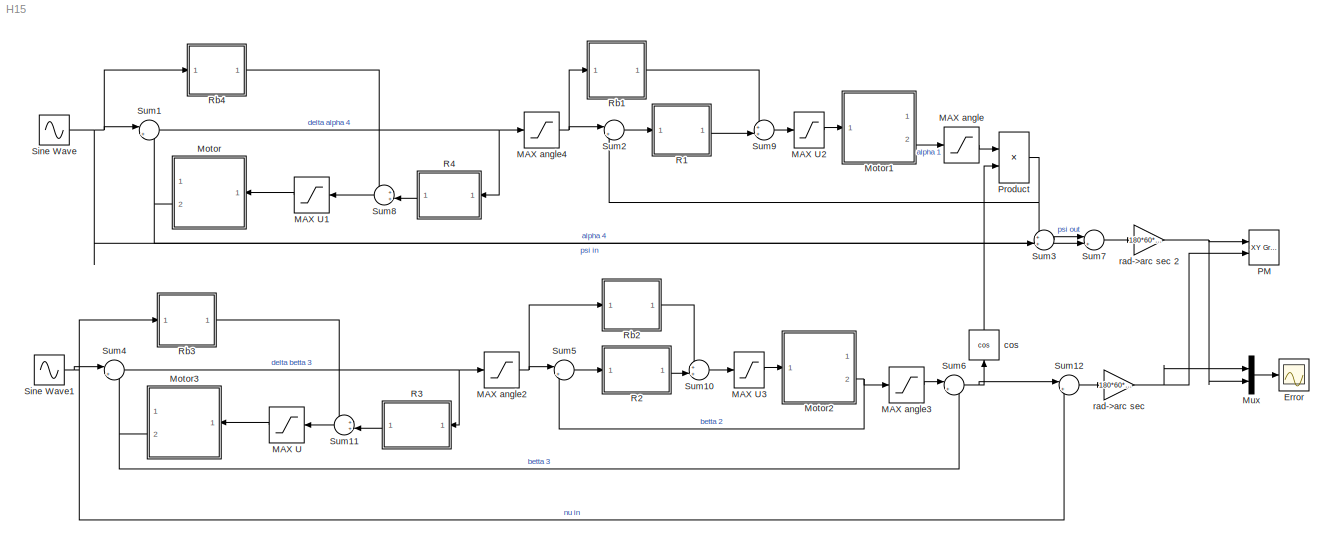
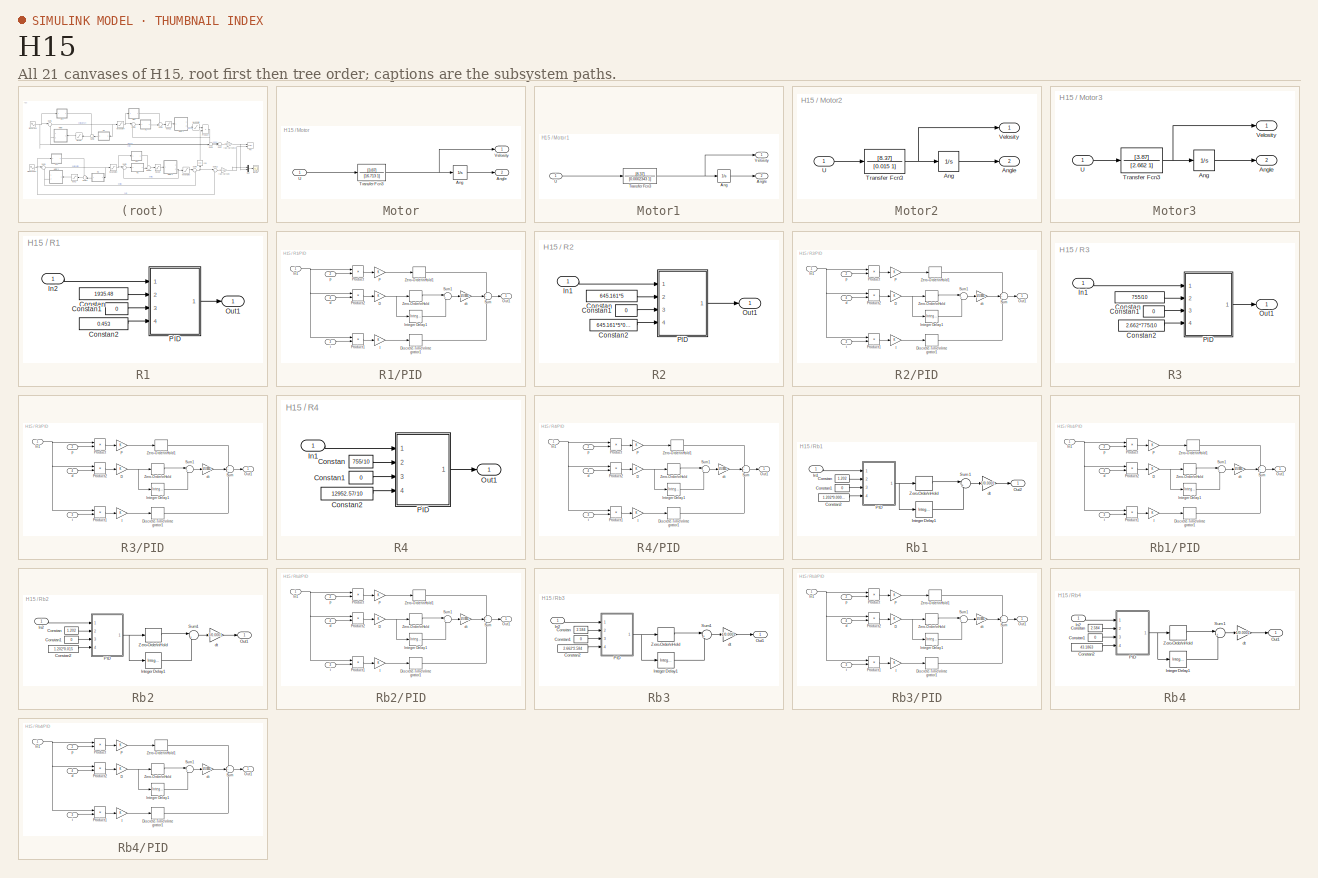
[diagram: thumbnail index - all 21 canvases of the model, root first then tree order]
MODEL H15
KIND model
BLOCK [Scope] Error
  DataFormat = StructureWithTime
  Floating = off
  MaxDataPoints = 500000
  NumInputPorts = 1
  Ports = [1]
  SampleTime = 0
  SaveName = ScopeData2
  YMax = 95
  YMin = -10
  ZoomMode = yonly
BLOCK [Saturate] MAX U
  LowerLimit = -42
  UpperLimit = 42
BLOCK [Saturate] MAX U1
  LowerLimit = -42
  UpperLimit = 42
BLOCK [Saturate] MAX U2
  LowerLimit = -12
  UpperLimit = 12
BLOCK [Saturate] MAX U3
  LowerLimit = -12
  UpperLimit = 12
BLOCK [Saturate] MAX angle
  LowerLimit = -4/180*3.14
  UpperLimit = 4/180*3.14
BLOCK [Saturate] MAX angle2
  LowerLimit = -4/180*3.14
  UpperLimit = 4/180*3.14
BLOCK [Saturate] MAX angle3
  LowerLimit = -4/180*3.14
  UpperLimit = 4/180*3.14
BLOCK [Saturate] MAX angle4
  LowerLimit = -4/180*3.14
  UpperLimit = 4/180*3.14
BLOCK [SubSystem] Motor
  FunctionWithSeparateData = off
  MaskHideContents = off
  MinAlgLoopOccurrences = off
  Opaque = off
  Ports = [1, 2]
  PropExecContextOutsideSubsystem = off
  RTWSystemCode = Auto
  RequestExecContextInheritance = off
  TreatAsAtomicUnit = on
BLOCK [Integrator] Motor/Ang
  Ports = [1, 1]
BLOCK [Outport] Motor/Angle
  IconDisplay = Port number
  OutDataType = fixdt(1, 16)
  OutScaling = 2^0
  Port = 2
BLOCK [TransferFcn] Motor/Transfer Fcn3
  Denominator = [16.713 1]
  Numerator = [3.87]
BLOCK [Inport] Motor/U
  IconDisplay = Port number
  OutDataType = fixdt(1, 16)
  OutScaling = 2^0
BLOCK [Outport] Motor/Velosity
  IconDisplay = Port number
  OutDataType = fixdt(1, 16)
  OutScaling = 2^0
BLOCK [SubSystem] Motor1
  FunctionWithSeparateData = off
  MaskHideContents = off
  MinAlgLoopOccurrences = off
  Opaque = off
  Ports = [1, 2]
  PropExecContextOutsideSubsystem = off
  RTWSystemCode = Auto
  RequestExecContextInheritance = off
  TreatAsAtomicUnit = on
BLOCK [Integrator] Motor1/Ang
  Ports = [1, 1]
BLOCK [Outport] Motor1/Angle
  IconDisplay = Port number
  OutDataType = fixdt(1, 16)
  OutScaling = 2^0
  Port = 2
BLOCK [TransferFcn] Motor1/Transfer Fcn3
  Denominator = [0.0002343 1]
  Numerator = [8.37]
BLOCK [Inport] Motor1/U
  IconDisplay = Port number
  OutDataType = fixdt(1, 16)
  OutScaling = 2^0
BLOCK [Outport] Motor1/Velosity
  IconDisplay = Port number
  OutDataType = fixdt(1, 16)
  OutScaling = 2^0
BLOCK [SubSystem] Motor2
  FunctionWithSeparateData = off
  MaskHideContents = off
  MinAlgLoopOccurrences = off
  Opaque = off
  Ports = [1, 2]
  PropExecContextOutsideSubsystem = off
  RTWSystemCode = Auto
  RequestExecContextInheritance = off
  TreatAsAtomicUnit = on
BLOCK [Integrator] Motor2/Ang
  Ports = [1, 1]
BLOCK [Outport] Motor2/Angle
  IconDisplay = Port number
  OutDataType = fixdt(1, 16)
  OutScaling = 2^0
  Port = 2
BLOCK [TransferFcn] Motor2/Transfer Fcn3
  Denominator = [0.015 1]
  Numerator = [8.37]
BLOCK [Inport] Motor2/U
  IconDisplay = Port number
  OutDataType = fixdt(1, 16)
  OutScaling = 2^0
BLOCK [Outport] Motor2/Velosity
  IconDisplay = Port number
  OutDataType = fixdt(1, 16)
  OutScaling = 2^0
BLOCK [SubSystem] Motor3
  FunctionWithSeparateData = off
  MaskHideContents = off
  MinAlgLoopOccurrences = off
  Opaque = off
  Ports = [1, 2]
  PropExecContextOutsideSubsystem = off
  RTWSystemCode = Auto
  RequestExecContextInheritance = off
  TreatAsAtomicUnit = on
BLOCK [Integrator] Motor3/Ang
  Ports = [1, 1]
BLOCK [Outport] Motor3/Angle
  IconDisplay = Port number
  OutDataType = fixdt(1, 16)
  OutScaling = 2^0
  Port = 2
BLOCK [TransferFcn] Motor3/Transfer Fcn3
  Denominator = [2.662 1]
  Numerator = [3.87]
BLOCK [Inport] Motor3/U
  IconDisplay = Port number
  OutDataType = fixdt(1, 16)
  OutScaling = 2^0
BLOCK [Outport] Motor3/Velosity
  IconDisplay = Port number
  OutDataType = fixdt(1, 16)
  OutScaling = 2^0
BLOCK [Mux] Mux
  DisplayOption = bar
  Inputs = 2
  Ports = [2, 1]
BLOCK [Reference] PM  REF=simulink/Sinks/XY Graph
  FunctionWithSeparateData = off
  Ports = [2]
  RTWMemSecDataConstants = Inherit from model
  RTWMemSecDataInternal = Inherit from model
  RTWMemSecDataParameters = Inherit from model
  RTWMemSecFuncExecute = Inherit from model
  RTWMemSecFuncInitTerm = Inherit from model
  ShowPortLabels = FromPortIcon
  SourceBlock = simulink/Sinks/XY Graph
  SourceType = XY scope.
  SystemSampleTime = -1
  st = -1
  xmax = 3*1280
  xmin = -3*1280
  ymax = 3*960
  ymin = -3*960
BLOCK [Product] Product
  InputSameDT = off
  OutDataType = fixdt(1, 16)
  OutDataTypeMode = Inherit via internal rule
  OutDataTypeStr = Inherit: Inherit via internal rule
  OutScaling = 2^0
  Ports = [2, 1]
  SaturateOnIntegerOverflow = off
BLOCK [SubSystem] R1
  FunctionWithSeparateData = off
  MaskHideContents = off
  MinAlgLoopOccurrences = off
  Opaque = off
  Ports = [1, 1]
  PropExecContextOutsideSubsystem = off
  RTWSystemCode = Auto
  RequestExecContextInheritance = off
BLOCK [Constant] R1/Constan
  OutDataType = fixdt(1, 16)
  OutScaling = 2^0
  Value = 1935.48
BLOCK [Constant] R1/Constan1
  OutDataType = fixdt(1, 16)
  OutScaling = 2^0
  Value = 0
BLOCK [Constant] R1/Constan2
  OutDataType = fixdt(1, 16)
  OutScaling = 2^0
  Value = 0.453
BLOCK [Inport] R1/In2
  IconDisplay = Port number
  OutDataType = fixdt(1, 16)
  OutScaling = 2^0
BLOCK [Outport] R1/Out1
  IconDisplay = Port number
  OutDataType = fixdt(1, 16)
  OutScaling = 2^0
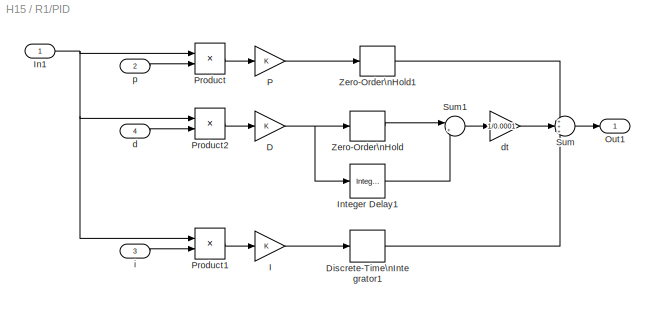
BLOCK [SubSystem] R1/PID
  FunctionWithSeparateData = off
  MaskHideContents = off
  MinAlgLoopOccurrences = off
  Opaque = off
  Ports = [4, 1]
  PropExecContextOutsideSubsystem = off
  RTWSystemCode = Auto
  RequestExecContextInheritance = off
BLOCK [Gain] R1/PID/D
  OutDataType = fixdt(1, 16)
  OutDataTypeMode = Inherit via internal rule
  OutDataTypeStr = Inherit: Inherit via internal rule
  OutScaling = 2^0
  ParamDataTypeStr = Inherit: Inherit via internal rule
  ParameterDataType = fixdt(1, 16)
  ParameterDataTypeMode = Inherit via internal rule
  ParameterScaling = 2^0
  SaturateOnIntegerOverflow = off
BLOCK [DiscreteIntegrator] R1/PID/Discrete-Time\nIntegrator1
  ExternalReset = none
  ICPrevOutput = DiscIntNeverNeededParam
  ICPrevScaledInput = DiscIntNeverNeededParam
  InitialConditionSource = internal
  IntegratorMethod = Integration: Forward Euler
  OutDataType = fixdt(1, 16)
  OutScaling = 2^0
  Ports = [1, 1]
  SampleTime = 0.0001
BLOCK [Gain] R1/PID/I
  OutDataType = fixdt(1, 16)
  OutDataTypeMode = Inherit via internal rule
  OutDataTypeStr = Inherit: Inherit via internal rule
  OutScaling = 2^0
  ParamDataTypeStr = Inherit: Inherit via internal rule
  ParameterDataType = fixdt(1, 16)
  ParameterDataTypeMode = Inherit via internal rule
  ParameterScaling = 2^0
  SaturateOnIntegerOverflow = off
BLOCK [Inport] R1/PID/In1
  IconDisplay = Port number
  OutDataType = fixdt(1, 16)
  OutScaling = 2^0
BLOCK [Reference] R1/PID/Integer Delay1  REF=simulink/Discrete/Integer Delay
  NumDelays = 1
  Ports = [1, 1]
  SourceBlock = simulink/Discrete/Integer Delay
  SourceType = Integer Delay
  samptime = 0.0001
  vinit = 0.0
BLOCK [Outport] R1/PID/Out1
  IconDisplay = Port number
  OutDataType = fixdt(1, 16)
  OutScaling = 2^0
BLOCK [Gain] R1/PID/P
  OutDataType = fixdt(1, 16)
  OutDataTypeMode = Inherit via internal rule
  OutDataTypeStr = Inherit: Inherit via internal rule
  OutScaling = 2^0
  ParamDataTypeStr = Inherit: Inherit via internal rule
  ParameterDataType = fixdt(1, 16)
  ParameterDataTypeMode = Inherit via internal rule
  ParameterScaling = 2^0
  SaturateOnIntegerOverflow = off
BLOCK [Product] R1/PID/Product
  InputSameDT = off
  OutDataType = fixdt(1, 16)
  OutDataTypeMode = Inherit via internal rule
  OutDataTypeStr = Inherit: Inherit via internal rule
  OutScaling = 2^0
  Ports = [2, 1]
  SaturateOnIntegerOverflow = off
BLOCK [Product] R1/PID/Product1
  InputSameDT = off
  OutDataType = fixdt(1, 16)
  OutDataTypeMode = Inherit via internal rule
  OutDataTypeStr = Inherit: Inherit via internal rule
  OutScaling = 2^0
  Ports = [2, 1]
  SaturateOnIntegerOverflow = off
BLOCK [Product] R1/PID/Product2
  InputSameDT = off
  OutDataType = fixdt(1, 16)
  OutDataTypeMode = Inherit via internal rule
  OutDataTypeStr = Inherit: Inherit via internal rule
  OutScaling = 2^0
  Ports = [2, 1]
  SaturateOnIntegerOverflow = off
BLOCK [Sum] R1/PID/Sum
  IconShape = round
  InputSameDT = off
  Inputs = +++
  OutDataType = fixdt(1, 16)
  OutDataTypeMode = Inherit via internal rule
  OutDataTypeStr = Inherit: Inherit via internal rule
  OutScaling = 2^0
  Ports = [3, 1]
  SaturateOnIntegerOverflow = off
BLOCK [Sum] R1/PID/Sum1
  IconShape = round
  InputSameDT = off
  Inputs = |+-
  OutDataType = fixdt(1, 16)
  OutDataTypeMode = Inherit via internal rule
  OutDataTypeStr = Inherit: Inherit via internal rule
  OutScaling = 2^0
  Ports = [2, 1]
  SaturateOnIntegerOverflow = off
BLOCK [ZeroOrderHold] R1/PID/Zero-Order\nHold
  SampleTime = 0.0001
BLOCK [ZeroOrderHold] R1/PID/Zero-Order\nHold1
  SampleTime = 0.0001
BLOCK [Inport] R1/PID/d
  IconDisplay = Port number
  OutDataType = fixdt(1, 16)
  OutScaling = 2^0
  Port = 4
BLOCK [Gain] R1/PID/dt
  Gain = 1/0.0001
  OutDataType = fixdt(1, 16)
  OutDataTypeMode = Inherit via internal rule
  OutDataTypeStr = Inherit: Inherit via internal rule
  OutScaling = 2^0
  ParamDataTypeStr = Inherit: Inherit via internal rule
  ParameterDataType = fixdt(1, 16)
  ParameterDataTypeMode = Inherit via internal rule
  ParameterScaling = 2^0
  SaturateOnIntegerOverflow = off
BLOCK [Inport] R1/PID/i
  IconDisplay = Port number
  OutDataType = fixdt(1, 16)
  OutScaling = 2^0
  Port = 3
BLOCK [Inport] R1/PID/p
  IconDisplay = Port number
  OutDataType = fixdt(1, 16)
  OutScaling = 2^0
  Port = 2
BLOCK [SubSystem] R2
  FunctionWithSeparateData = off
  MaskHideContents = off
  MinAlgLoopOccurrences = off
  Opaque = off
  Ports = [1, 1]
  PropExecContextOutsideSubsystem = off
  RTWSystemCode = Auto
  RequestExecContextInheritance = off
BLOCK [Constant] R2/Constan
  OutDataType = fixdt(1, 16)
  OutScaling = 2^0
  Value = 645.161*5
BLOCK [Constant] R2/Constan1
  OutDataType = fixdt(1, 16)
  OutScaling = 2^0
  Value = 0
BLOCK [Constant] R2/Constan2
  OutDataType = fixdt(1, 16)
  OutScaling = 2^0
  Value = 645.161*5*0.015/10
BLOCK [Inport] R2/In1
  IconDisplay = Port number
  OutDataType = fixdt(1, 16)
  OutScaling = 2^0
BLOCK [Outport] R2/Out1
  IconDisplay = Port number
  OutDataType = fixdt(1, 16)
  OutScaling = 2^0
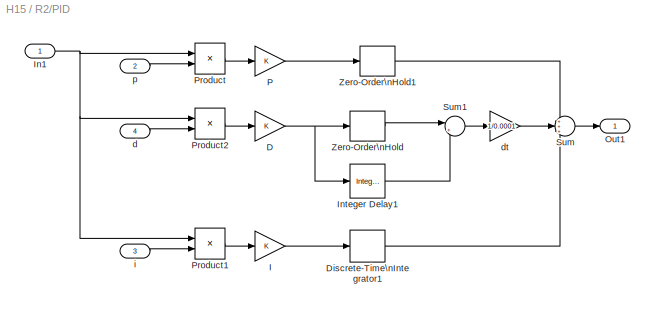
BLOCK [SubSystem] R2/PID
  FunctionWithSeparateData = off
  MaskHideContents = off
  MinAlgLoopOccurrences = off
  Opaque = off
  Ports = [4, 1]
  PropExecContextOutsideSubsystem = off
  RTWSystemCode = Auto
  RequestExecContextInheritance = off
BLOCK [Gain] R2/PID/D
  OutDataType = fixdt(1, 16)
  OutDataTypeMode = Inherit via internal rule
  OutDataTypeStr = Inherit: Inherit via internal rule
  OutScaling = 2^0
  ParamDataTypeStr = Inherit: Inherit via internal rule
  ParameterDataType = fixdt(1, 16)
  ParameterDataTypeMode = Inherit via internal rule
  ParameterScaling = 2^0
  SaturateOnIntegerOverflow = off
BLOCK [DiscreteIntegrator] R2/PID/Discrete-Time\nIntegrator1
  ExternalReset = none
  ICPrevOutput = DiscIntNeverNeededParam
  ICPrevScaledInput = DiscIntNeverNeededParam
  InitialConditionSource = internal
  IntegratorMethod = Integration: Forward Euler
  OutDataType = fixdt(1, 16)
  OutScaling = 2^0
  Ports = [1, 1]
  SampleTime = 0.0001
BLOCK [Gain] R2/PID/I
  OutDataType = fixdt(1, 16)
  OutDataTypeMode = Inherit via internal rule
  OutDataTypeStr = Inherit: Inherit via internal rule
  OutScaling = 2^0
  ParamDataTypeStr = Inherit: Inherit via internal rule
  ParameterDataType = fixdt(1, 16)
  ParameterDataTypeMode = Inherit via internal rule
  ParameterScaling = 2^0
  SaturateOnIntegerOverflow = off
BLOCK [Inport] R2/PID/In1
  IconDisplay = Port number
  OutDataType = fixdt(1, 16)
  OutScaling = 2^0
BLOCK [Reference] R2/PID/Integer Delay1  REF=simulink/Discrete/Integer Delay
  NumDelays = 1
  Ports = [1, 1]
  SourceBlock = simulink/Discrete/Integer Delay
  SourceType = Integer Delay
  samptime = 0.0001
  vinit = 0
BLOCK [Outport] R2/PID/Out1
  IconDisplay = Port number
  OutDataType = fixdt(1, 16)
  OutScaling = 2^0
BLOCK [Gain] R2/PID/P
  OutDataType = fixdt(1, 16)
  OutDataTypeMode = Inherit via internal rule
  OutDataTypeStr = Inherit: Inherit via internal rule
  OutScaling = 2^0
  ParamDataTypeStr = Inherit: Inherit via internal rule
  ParameterDataType = fixdt(1, 16)
  ParameterDataTypeMode = Inherit via internal rule
  ParameterScaling = 2^0
  SaturateOnIntegerOverflow = off
BLOCK [Product] R2/PID/Product
  InputSameDT = off
  OutDataType = fixdt(1, 16)
  OutDataTypeMode = Inherit via internal rule
  OutDataTypeStr = Inherit: Inherit via internal rule
  OutScaling = 2^0
  Ports = [2, 1]
  SaturateOnIntegerOverflow = off
BLOCK [Product] R2/PID/Product1
  InputSameDT = off
  OutDataType = fixdt(1, 16)
  OutDataTypeMode = Inherit via internal rule
  OutDataTypeStr = Inherit: Inherit via internal rule
  OutScaling = 2^0
  Ports = [2, 1]
  SaturateOnIntegerOverflow = off
BLOCK [Product] R2/PID/Product2
  InputSameDT = off
  OutDataType = fixdt(1, 16)
  OutDataTypeMode = Inherit via internal rule
  OutDataTypeStr = Inherit: Inherit via internal rule
  OutScaling = 2^0
  Ports = [2, 1]
  SaturateOnIntegerOverflow = off
BLOCK [Sum] R2/PID/Sum
  IconShape = round
  InputSameDT = off
  Inputs = +++
  OutDataType = fixdt(1, 16)
  OutDataTypeMode = Inherit via internal rule
  OutDataTypeStr = Inherit: Inherit via internal rule
  OutScaling = 2^0
  Ports = [3, 1]
  SaturateOnIntegerOverflow = off
BLOCK [Sum] R2/PID/Sum1
  IconShape = round
  InputSameDT = off
  Inputs = |+-
  OutDataType = fixdt(1, 16)
  OutDataTypeMode = Inherit via internal rule
  OutDataTypeStr = Inherit: Inherit via internal rule
  OutScaling = 2^0
  Ports = [2, 1]
  SaturateOnIntegerOverflow = off
BLOCK [ZeroOrderHold] R2/PID/Zero-Order\nHold
  SampleTime = 0.0001
BLOCK [ZeroOrderHold] R2/PID/Zero-Order\nHold1
  SampleTime = 0.0001
BLOCK [Inport] R2/PID/d
  IconDisplay = Port number
  OutDataType = fixdt(1, 16)
  OutScaling = 2^0
  Port = 4
BLOCK [Gain] R2/PID/dt
  Gain = 1/0.0001
  OutDataType = fixdt(1, 16)
  OutDataTypeMode = Inherit via internal rule
  OutDataTypeStr = Inherit: Inherit via internal rule
  OutScaling = 2^0
  ParamDataTypeStr = Inherit: Inherit via internal rule
  ParameterDataType = fixdt(1, 16)
  ParameterDataTypeMode = Inherit via internal rule
  ParameterScaling = 2^0
  SaturateOnIntegerOverflow = off
BLOCK [Inport] R2/PID/i
  IconDisplay = Port number
  OutDataType = fixdt(1, 16)
  OutScaling = 2^0
  Port = 3
BLOCK [Inport] R2/PID/p
  IconDisplay = Port number
  OutDataType = fixdt(1, 16)
  OutScaling = 2^0
  Port = 2
BLOCK [SubSystem] R3
  FunctionWithSeparateData = off
  MaskHideContents = off
  MinAlgLoopOccurrences = off
  Opaque = off
  Ports = [1, 1]
  PropExecContextOutsideSubsystem = off
  RTWSystemCode = Auto
  RequestExecContextInheritance = off
BLOCK [Constant] R3/Constan
  OutDataType = fixdt(1, 16)
  OutScaling = 2^0
  Value = 755/10
BLOCK [Constant] R3/Constan1
  OutDataType = fixdt(1, 16)
  OutScaling = 2^0
  Value = 0
BLOCK [Constant] R3/Constan2
  OutDataType = fixdt(1, 16)
  OutScaling = 2^0
  Value = 2.662*775/10
BLOCK [Inport] R3/In1
  IconDisplay = Port number
  OutDataType = fixdt(1, 16)
  OutScaling = 2^0
BLOCK [Outport] R3/Out1
  IconDisplay = Port number
  OutDataType = fixdt(1, 16)
  OutScaling = 2^0
BLOCK [SubSystem] R3/PID
  FunctionWithSeparateData = off
  MaskHideContents = off
  MinAlgLoopOccurrences = off
  Opaque = off
  Ports = [4, 1]
  PropExecContextOutsideSubsystem = off
  RTWSystemCode = Auto
  RequestExecContextInheritance = off
BLOCK [Gain] R3/PID/D
  OutDataType = fixdt(1, 16)
  OutDataTypeMode = Inherit via internal rule
  OutDataTypeStr = Inherit: Inherit via internal rule
  OutScaling = 2^0
  ParamDataTypeStr = Inherit: Inherit via internal rule
  ParameterDataType = fixdt(1, 16)
  ParameterDataTypeMode = Inherit via internal rule
  ParameterScaling = 2^0
  SaturateOnIntegerOverflow = off
BLOCK [DiscreteIntegrator] R3/PID/Discrete-Time\nIntegrator1
  ExternalReset = none
  ICPrevOutput = DiscIntNeverNeededParam
  ICPrevScaledInput = DiscIntNeverNeededParam
  InitialConditionSource = internal
  IntegratorMethod = Integration: Forward Euler
  OutDataType = fixdt(1, 16)
  OutScaling = 2^0
  Ports = [1, 1]
  SampleTime = 0.0001
BLOCK [Gain] R3/PID/I
  OutDataType = fixdt(1, 16)
  OutDataTypeMode = Inherit via internal rule
  OutDataTypeStr = Inherit: Inherit via internal rule
  OutScaling = 2^0
  ParamDataTypeStr = Inherit: Inherit via internal rule
  ParameterDataType = fixdt(1, 16)
  ParameterDataTypeMode = Inherit via internal rule
  ParameterScaling = 2^0
  SaturateOnIntegerOverflow = off
BLOCK [Inport] R3/PID/In1
  IconDisplay = Port number
  OutDataType = fixdt(1, 16)
  OutScaling = 2^0
BLOCK [Reference] R3/PID/Integer Delay1  REF=simulink/Discrete/Integer Delay
  NumDelays = 1
  Ports = [1, 1]
  SourceBlock = simulink/Discrete/Integer Delay
  SourceType = Integer Delay
  samptime = 0.0001
  vinit = 0
BLOCK [Outport] R3/PID/Out1
  IconDisplay = Port number
  OutDataType = fixdt(1, 16)
  OutScaling = 2^0
BLOCK [Gain] R3/PID/P
  OutDataType = fixdt(1, 16)
  OutDataTypeMode = Inherit via internal rule
  OutDataTypeStr = Inherit: Inherit via internal rule
  OutScaling = 2^0
  ParamDataTypeStr = Inherit: Inherit via internal rule
  ParameterDataType = fixdt(1, 16)
  ParameterDataTypeMode = Inherit via internal rule
  ParameterScaling = 2^0
  SaturateOnIntegerOverflow = off
BLOCK [Product] R3/PID/Product
  InputSameDT = off
  OutDataType = fixdt(1, 16)
  OutDataTypeMode = Inherit via internal rule
  OutDataTypeStr = Inherit: Inherit via internal rule
  OutScaling = 2^0
  Ports = [2, 1]
  SaturateOnIntegerOverflow = off
BLOCK [Product] R3/PID/Product1
  InputSameDT = off
  OutDataType = fixdt(1, 16)
  OutDataTypeMode = Inherit via internal rule
  OutDataTypeStr = Inherit: Inherit via internal rule
  OutScaling = 2^0
  Ports = [2, 1]
  SaturateOnIntegerOverflow = off
BLOCK [Product] R3/PID/Product2
  InputSameDT = off
  OutDataType = fixdt(1, 16)
  OutDataTypeMode = Inherit via internal rule
  OutDataTypeStr = Inherit: Inherit via internal rule
  OutScaling = 2^0
  Ports = [2, 1]
  SaturateOnIntegerOverflow = off
BLOCK [Sum] R3/PID/Sum
  IconShape = round
  InputSameDT = off
  Inputs = +++
  OutDataType = fixdt(1, 16)
  OutDataTypeMode = Inherit via internal rule
  OutDataTypeStr = Inherit: Inherit via internal rule
  OutScaling = 2^0
  Ports = [3, 1]
  SaturateOnIntegerOverflow = off
BLOCK [Sum] R3/PID/Sum1
  IconShape = round
  InputSameDT = off
  Inputs = |+-
  OutDataType = fixdt(1, 16)
  OutDataTypeMode = Inherit via internal rule
  OutDataTypeStr = Inherit: Inherit via internal rule
  OutScaling = 2^0
  Ports = [2, 1]
  SaturateOnIntegerOverflow = off
BLOCK [ZeroOrderHold] R3/PID/Zero-Order\nHold
  SampleTime = 0.0001
BLOCK [ZeroOrderHold] R3/PID/Zero-Order\nHold1
  SampleTime = 0.0001
BLOCK [Inport] R3/PID/d
  IconDisplay = Port number
  OutDataType = fixdt(1, 16)
  OutScaling = 2^0
  Port = 4
BLOCK [Gain] R3/PID/dt
  Gain = 1/0.0001
  OutDataType = fixdt(1, 16)
  OutDataTypeMode = Inherit via internal rule
  OutDataTypeStr = Inherit: Inherit via internal rule
  OutScaling = 2^0
  ParamDataTypeStr = Inherit: Inherit via internal rule
  ParameterDataType = fixdt(1, 16)
  ParameterDataTypeMode = Inherit via internal rule
  ParameterScaling = 2^0
  SaturateOnIntegerOverflow = off
BLOCK [Inport] R3/PID/i
  IconDisplay = Port number
  OutDataType = fixdt(1, 16)
  OutScaling = 2^0
  Port = 3
BLOCK [Inport] R3/PID/p
  IconDisplay = Port number
  OutDataType = fixdt(1, 16)
  OutScaling = 2^0
  Port = 2
BLOCK [SubSystem] R4
  FunctionWithSeparateData = off
  MaskHideContents = off
  MinAlgLoopOccurrences = off
  Opaque = off
  Ports = [1, 1]
  PropExecContextOutsideSubsystem = off
  RTWSystemCode = Auto
  RequestExecContextInheritance = off
BLOCK [Constant] R4/Constan
  OutDataType = fixdt(1, 16)
  OutScaling = 2^0
  Value = 755/10
BLOCK [Constant] R4/Constan1
  OutDataType = fixdt(1, 16)
  OutScaling = 2^0
  Value = 0
BLOCK [Constant] R4/Constan2
  OutDataType = fixdt(1, 16)
  OutScaling = 2^0
  Value = 12952.57/10
BLOCK [Inport] R4/In1
  IconDisplay = Port number
  OutDataType = fixdt(1, 16)
  OutScaling = 2^0
BLOCK [Outport] R4/Out1
  IconDisplay = Port number
  OutDataType = fixdt(1, 16)
  OutScaling = 2^0
BLOCK [SubSystem] R4/PID
  FunctionWithSeparateData = off
  MaskHideContents = off
  MinAlgLoopOccurrences = off
  Opaque = off
  Ports = [4, 1]
  PropExecContextOutsideSubsystem = off
  RTWSystemCode = Auto
  RequestExecContextInheritance = off
BLOCK [Gain] R4/PID/D
  OutDataType = fixdt(1, 16)
  OutDataTypeMode = Inherit via internal rule
  OutDataTypeStr = Inherit: Inherit via internal rule
  OutScaling = 2^0
  ParamDataTypeStr = Inherit: Inherit via internal rule
  ParameterDataType = fixdt(1, 16)
  ParameterDataTypeMode = Inherit via internal rule
  ParameterScaling = 2^0
  SaturateOnIntegerOverflow = off
BLOCK [DiscreteIntegrator] R4/PID/Discrete-Time\nIntegrator1
  ExternalReset = none
  ICPrevOutput = DiscIntNeverNeededParam
  ICPrevScaledInput = DiscIntNeverNeededParam
  InitialConditionSource = internal
  IntegratorMethod = Integration: Forward Euler
  OutDataType = fixdt(1, 16)
  OutScaling = 2^0
  Ports = [1, 1]
  SampleTime = 0.0001
BLOCK [Gain] R4/PID/I
  OutDataType = fixdt(1, 16)
  OutDataTypeMode = Inherit via internal rule
  OutDataTypeStr = Inherit: Inherit via internal rule
  OutScaling = 2^0
  ParamDataTypeStr = Inherit: Inherit via internal rule
  ParameterDataType = fixdt(1, 16)
  ParameterDataTypeMode = Inherit via internal rule
  ParameterScaling = 2^0
  SaturateOnIntegerOverflow = off
BLOCK [Inport] R4/PID/In1
  IconDisplay = Port number
  OutDataType = fixdt(1, 16)
  OutScaling = 2^0
BLOCK [Reference] R4/PID/Integer Delay1  REF=simulink/Discrete/Integer Delay
  NumDelays = 1
  Ports = [1, 1]
  SourceBlock = simulink/Discrete/Integer Delay
  SourceType = Integer Delay
  samptime = 0.0001
  vinit = 0
BLOCK [Outport] R4/PID/Out1
  IconDisplay = Port number
  OutDataType = fixdt(1, 16)
  OutScaling = 2^0
BLOCK [Gain] R4/PID/P
  OutDataType = fixdt(1, 16)
  OutDataTypeMode = Inherit via internal rule
  OutDataTypeStr = Inherit: Inherit via internal rule
  OutScaling = 2^0
  ParamDataTypeStr = Inherit: Inherit via internal rule
  ParameterDataType = fixdt(1, 16)
  ParameterDataTypeMode = Inherit via internal rule
  ParameterScaling = 2^0
  SaturateOnIntegerOverflow = off
BLOCK [Product] R4/PID/Product
  InputSameDT = off
  OutDataType = fixdt(1, 16)
  OutDataTypeMode = Inherit via internal rule
  OutDataTypeStr = Inherit: Inherit via internal rule
  OutScaling = 2^0
  Ports = [2, 1]
  SaturateOnIntegerOverflow = off
BLOCK [Product] R4/PID/Product1
  InputSameDT = off
  OutDataType = fixdt(1, 16)
  OutDataTypeMode = Inherit via internal rule
  OutDataTypeStr = Inherit: Inherit via internal rule
  OutScaling = 2^0
  Ports = [2, 1]
  SaturateOnIntegerOverflow = off
BLOCK [Product] R4/PID/Product2
  InputSameDT = off
  OutDataType = fixdt(1, 16)
  OutDataTypeMode = Inherit via internal rule
  OutDataTypeStr = Inherit: Inherit via internal rule
  OutScaling = 2^0
  Ports = [2, 1]
  SaturateOnIntegerOverflow = off
BLOCK [Sum] R4/PID/Sum
  IconShape = round
  InputSameDT = off
  Inputs = +++
  OutDataType = fixdt(1, 16)
  OutDataTypeMode = Inherit via internal rule
  OutDataTypeStr = Inherit: Inherit via internal rule
  OutScaling = 2^0
  Ports = [3, 1]
  SaturateOnIntegerOverflow = off
BLOCK [Sum] R4/PID/Sum1
  IconShape = round
  InputSameDT = off
  Inputs = |+-
  OutDataType = fixdt(1, 16)
  OutDataTypeMode = Inherit via internal rule
  OutDataTypeStr = Inherit: Inherit via internal rule
  OutScaling = 2^0
  Ports = [2, 1]
  SaturateOnIntegerOverflow = off
BLOCK [ZeroOrderHold] R4/PID/Zero-Order\nHold
  SampleTime = 0.0001
BLOCK [ZeroOrderHold] R4/PID/Zero-Order\nHold1
  SampleTime = 0.0001
BLOCK [Inport] R4/PID/d
  IconDisplay = Port number
  OutDataType = fixdt(1, 16)
  OutScaling = 2^0
  Port = 4
BLOCK [Gain] R4/PID/dt
  Gain = 1/0.0001
  OutDataType = fixdt(1, 16)
  OutDataTypeMode = Inherit via internal rule
  OutDataTypeStr = Inherit: Inherit via internal rule
  OutScaling = 2^0
  ParamDataTypeStr = Inherit: Inherit via internal rule
  ParameterDataType = fixdt(1, 16)
  ParameterDataTypeMode = Inherit via internal rule
  ParameterScaling = 2^0
  SaturateOnIntegerOverflow = off
BLOCK [Inport] R4/PID/i
  IconDisplay = Port number
  OutDataType = fixdt(1, 16)
  OutScaling = 2^0
  Port = 3
BLOCK [Inport] R4/PID/p
  IconDisplay = Port number
  OutDataType = fixdt(1, 16)
  OutScaling = 2^0
  Port = 2
BLOCK [SubSystem] Rb1
  FunctionWithSeparateData = off
  MaskHideContents = off
  MinAlgLoopOccurrences = off
  Opaque = off
  Ports = [1, 1]
  PropExecContextOutsideSubsystem = off
  RTWSystemCode = Auto
  RequestExecContextInheritance = off
BLOCK [Constant] Rb1/Constan
  OutDataType = fixdt(1, 16)
  OutScaling = 2^0
  Value = 1.202
BLOCK [Constant] Rb1/Constan1
  OutDataType = fixdt(1, 16)
  OutScaling = 2^0
  Value = 0
BLOCK [Constant] Rb1/Constan2
  OutDataType = fixdt(1, 16)
  OutScaling = 2^0
  Value = 1.202*0.0002343
BLOCK [Inport] Rb1/In1
  IconDisplay = Port number
  OutDataType = fixdt(1, 16)
  OutScaling = 2^0
BLOCK [Reference] Rb1/Integer Delay1  REF=simulink/Discrete/Integer Delay
  NumDelays = 1
  Ports = [1, 1]
  SourceBlock = simulink/Discrete/Integer Delay
  SourceType = Integer Delay
  samptime = 0.0001
  vinit = 0
BLOCK [Outport] Rb1/Out2
  IconDisplay = Port number
  OutDataType = fixdt(1, 16)
  OutScaling = 2^0
BLOCK [SubSystem] Rb1/PID
  FunctionWithSeparateData = off
  MaskHideContents = off
  MinAlgLoopOccurrences = off
  Opaque = off
  Ports = [4, 1]
  PropExecContextOutsideSubsystem = off
  RTWSystemCode = Auto
  RequestExecContextInheritance = off
BLOCK [Gain] Rb1/PID/D
  OutDataType = fixdt(1, 16)
  OutDataTypeMode = Inherit via internal rule
  OutDataTypeStr = Inherit: Inherit via internal rule
  OutScaling = 2^0
  ParamDataTypeStr = Inherit: Inherit via internal rule
  ParameterDataType = fixdt(1, 16)
  ParameterDataTypeMode = Inherit via internal rule
  ParameterScaling = 2^0
  SaturateOnIntegerOverflow = off
BLOCK [DiscreteIntegrator] Rb1/PID/Discrete-Time\nIntegrator1
  ExternalReset = none
  ICPrevOutput = DiscIntNeverNeededParam
  ICPrevScaledInput = DiscIntNeverNeededParam
  InitialConditionSource = internal
  IntegratorMethod = Integration: Forward Euler
  OutDataType = fixdt(1, 16)
  OutScaling = 2^0
  Ports = [1, 1]
  SampleTime = 0.0001
BLOCK [Gain] Rb1/PID/I
  OutDataType = fixdt(1, 16)
  OutDataTypeMode = Inherit via internal rule
  OutDataTypeStr = Inherit: Inherit via internal rule
  OutScaling = 2^0
  ParamDataTypeStr = Inherit: Inherit via internal rule
  ParameterDataType = fixdt(1, 16)
  ParameterDataTypeMode = Inherit via internal rule
  ParameterScaling = 2^0
  SaturateOnIntegerOverflow = off
BLOCK [Inport] Rb1/PID/In1
  IconDisplay = Port number
  OutDataType = fixdt(1, 16)
  OutScaling = 2^0
BLOCK [Reference] Rb1/PID/Integer Delay1  REF=simulink/Discrete/Integer Delay
  NumDelays = 1
  Ports = [1, 1]
  SourceBlock = simulink/Discrete/Integer Delay
  SourceType = Integer Delay
  samptime = 0.0001
  vinit = 0
BLOCK [Outport] Rb1/PID/Out1
  IconDisplay = Port number
  OutDataType = fixdt(1, 16)
  OutScaling = 2^0
BLOCK [Gain] Rb1/PID/P
  OutDataType = fixdt(1, 16)
  OutDataTypeMode = Inherit via internal rule
  OutDataTypeStr = Inherit: Inherit via internal rule
  OutScaling = 2^0
  ParamDataTypeStr = Inherit: Inherit via internal rule
  ParameterDataType = fixdt(1, 16)
  ParameterDataTypeMode = Inherit via internal rule
  ParameterScaling = 2^0
  SaturateOnIntegerOverflow = off
BLOCK [Product] Rb1/PID/Product
  InputSameDT = off
  OutDataType = fixdt(1, 16)
  OutDataTypeMode = Inherit via internal rule
  OutDataTypeStr = Inherit: Inherit via internal rule
  OutScaling = 2^0
  Ports = [2, 1]
  SaturateOnIntegerOverflow = off
BLOCK [Product] Rb1/PID/Product1
  InputSameDT = off
  OutDataType = fixdt(1, 16)
  OutDataTypeMode = Inherit via internal rule
  OutDataTypeStr = Inherit: Inherit via internal rule
  OutScaling = 2^0
  Ports = [2, 1]
  SaturateOnIntegerOverflow = off
BLOCK [Product] Rb1/PID/Product2
  InputSameDT = off
  OutDataType = fixdt(1, 16)
  OutDataTypeMode = Inherit via internal rule
  OutDataTypeStr = Inherit: Inherit via internal rule
  OutScaling = 2^0
  Ports = [2, 1]
  SaturateOnIntegerOverflow = off
BLOCK [Sum] Rb1/PID/Sum
  IconShape = round
  InputSameDT = off
  Inputs = +++
  OutDataType = fixdt(1, 16)
  OutDataTypeMode = Inherit via internal rule
  OutDataTypeStr = Inherit: Inherit via internal rule
  OutScaling = 2^0
  Ports = [3, 1]
  SaturateOnIntegerOverflow = off
BLOCK [Sum] Rb1/PID/Sum1
  IconShape = round
  InputSameDT = off
  Inputs = |+-
  OutDataType = fixdt(1, 16)
  OutDataTypeMode = Inherit via internal rule
  OutDataTypeStr = Inherit: Inherit via internal rule
  OutScaling = 2^0
  Ports = [2, 1]
  SaturateOnIntegerOverflow = off
BLOCK [ZeroOrderHold] Rb1/PID/Zero-Order\nHold
  SampleTime = 0.0001
BLOCK [ZeroOrderHold] Rb1/PID/Zero-Order\nHold1
  SampleTime = 0.0001
BLOCK [Inport] Rb1/PID/d
  IconDisplay = Port number
  OutDataType = fixdt(1, 16)
  OutScaling = 2^0
  Port = 4
BLOCK [Gain] Rb1/PID/dt
  Gain = 1/0.0001
  OutDataType = fixdt(1, 16)
  OutDataTypeMode = Inherit via internal rule
  OutDataTypeStr = Inherit: Inherit via internal rule
  OutScaling = 2^0
  ParamDataTypeStr = Inherit: Inherit via internal rule
  ParameterDataType = fixdt(1, 16)
  ParameterDataTypeMode = Inherit via internal rule
  ParameterScaling = 2^0
  SaturateOnIntegerOverflow = off
BLOCK [Inport] Rb1/PID/i
  IconDisplay = Port number
  OutDataType = fixdt(1, 16)
  OutScaling = 2^0
  Port = 3
BLOCK [Inport] Rb1/PID/p
  IconDisplay = Port number
  OutDataType = fixdt(1, 16)
  OutScaling = 2^0
  Port = 2
BLOCK [Sum] Rb1/Sum1
  IconShape = round
  InputSameDT = off
  Inputs = |+-
  OutDataType = fixdt(1, 16)
  OutDataTypeMode = Inherit via internal rule
  OutDataTypeStr = Inherit: Inherit via internal rule
  OutScaling = 2^0
  Ports = [2, 1]
  SaturateOnIntegerOverflow = off
BLOCK [ZeroOrderHold] Rb1/Zero-Order\nHold
  SampleTime = 0.0001
BLOCK [Gain] Rb1/dt
  Gain = 1/0.0001
  OutDataType = fixdt(1, 16)
  OutDataTypeMode = Inherit via internal rule
  OutDataTypeStr = Inherit: Inherit via internal rule
  OutScaling = 2^0
  ParamDataTypeStr = Inherit: Inherit via internal rule
  ParameterDataType = fixdt(1, 16)
  ParameterDataTypeMode = Inherit via internal rule
  ParameterScaling = 2^0
  SaturateOnIntegerOverflow = off
BLOCK [SubSystem] Rb2
  FunctionWithSeparateData = off
  MaskHideContents = off
  MinAlgLoopOccurrences = off
  Opaque = off
  Ports = [1, 1]
  PropExecContextOutsideSubsystem = off
  RTWSystemCode = Auto
  RequestExecContextInheritance = off
BLOCK [Constant] Rb2/Constan
  OutDataType = fixdt(1, 16)
  OutScaling = 2^0
  Value = 1.202
BLOCK [Constant] Rb2/Constan1
  OutDataType = fixdt(1, 16)
  OutScaling = 2^0
  Value = 0
BLOCK [Constant] Rb2/Constan2
  OutDataType = fixdt(1, 16)
  OutScaling = 2^0
  Value = 1.202*0.015
BLOCK [Inport] Rb2/In2
  IconDisplay = Port number
  OutDataType = fixdt(1, 16)
  OutScaling = 2^0
BLOCK [Reference] Rb2/Integer Delay1  REF=simulink/Discrete/Integer Delay
  NumDelays = 1
  Ports = [1, 1]
  SourceBlock = simulink/Discrete/Integer Delay
  SourceType = Integer Delay
  samptime = 0.0001
  vinit = 0
BLOCK [Outport] Rb2/Out1
  IconDisplay = Port number
  OutDataType = fixdt(1, 16)
  OutScaling = 2^0
BLOCK [SubSystem] Rb2/PID
  FunctionWithSeparateData = off
  MaskHideContents = off
  MinAlgLoopOccurrences = off
  Opaque = off
  Ports = [4, 1]
  PropExecContextOutsideSubsystem = off
  RTWSystemCode = Auto
  RequestExecContextInheritance = off
BLOCK [Gain] Rb2/PID/D
  OutDataType = fixdt(1, 16)
  OutDataTypeMode = Inherit via internal rule
  OutDataTypeStr = Inherit: Inherit via internal rule
  OutScaling = 2^0
  ParamDataTypeStr = Inherit: Inherit via internal rule
  ParameterDataType = fixdt(1, 16)
  ParameterDataTypeMode = Inherit via internal rule
  ParameterScaling = 2^0
  SaturateOnIntegerOverflow = off
BLOCK [DiscreteIntegrator] Rb2/PID/Discrete-Time\nIntegrator1
  ExternalReset = none
  ICPrevOutput = DiscIntNeverNeededParam
  ICPrevScaledInput = DiscIntNeverNeededParam
  InitialConditionSource = internal
  IntegratorMethod = Integration: Forward Euler
  OutDataType = fixdt(1, 16)
  OutScaling = 2^0
  Ports = [1, 1]
  SampleTime = 0.0001
BLOCK [Gain] Rb2/PID/I
  OutDataType = fixdt(1, 16)
  OutDataTypeMode = Inherit via internal rule
  OutDataTypeStr = Inherit: Inherit via internal rule
  OutScaling = 2^0
  ParamDataTypeStr = Inherit: Inherit via internal rule
  ParameterDataType = fixdt(1, 16)
  ParameterDataTypeMode = Inherit via internal rule
  ParameterScaling = 2^0
  SaturateOnIntegerOverflow = off
BLOCK [Inport] Rb2/PID/In1
  IconDisplay = Port number
  OutDataType = fixdt(1, 16)
  OutScaling = 2^0
BLOCK [Reference] Rb2/PID/Integer Delay1  REF=simulink/Discrete/Integer Delay
  NumDelays = 1
  Ports = [1, 1]
  SourceBlock = simulink/Discrete/Integer Delay
  SourceType = Integer Delay
  samptime = 0.0001
  vinit = 0
BLOCK [Outport] Rb2/PID/Out1
  IconDisplay = Port number
  OutDataType = fixdt(1, 16)
  OutScaling = 2^0
BLOCK [Gain] Rb2/PID/P
  OutDataType = fixdt(1, 16)
  OutDataTypeMode = Inherit via internal rule
  OutDataTypeStr = Inherit: Inherit via internal rule
  OutScaling = 2^0
  ParamDataTypeStr = Inherit: Inherit via internal rule
  ParameterDataType = fixdt(1, 16)
  ParameterDataTypeMode = Inherit via internal rule
  ParameterScaling = 2^0
  SaturateOnIntegerOverflow = off
BLOCK [Product] Rb2/PID/Product
  InputSameDT = off
  OutDataType = fixdt(1, 16)
  OutDataTypeMode = Inherit via internal rule
  OutDataTypeStr = Inherit: Inherit via internal rule
  OutScaling = 2^0
  Ports = [2, 1]
  SaturateOnIntegerOverflow = off
BLOCK [Product] Rb2/PID/Product1
  InputSameDT = off
  OutDataType = fixdt(1, 16)
  OutDataTypeMode = Inherit via internal rule
  OutDataTypeStr = Inherit: Inherit via internal rule
  OutScaling = 2^0
  Ports = [2, 1]
  SaturateOnIntegerOverflow = off
BLOCK [Product] Rb2/PID/Product2
  InputSameDT = off
  OutDataType = fixdt(1, 16)
  OutDataTypeMode = Inherit via internal rule
  OutDataTypeStr = Inherit: Inherit via internal rule
  OutScaling = 2^0
  Ports = [2, 1]
  SaturateOnIntegerOverflow = off
BLOCK [Sum] Rb2/PID/Sum
  IconShape = round
  InputSameDT = off
  Inputs = +++
  OutDataType = fixdt(1, 16)
  OutDataTypeMode = Inherit via internal rule
  OutDataTypeStr = Inherit: Inherit via internal rule
  OutScaling = 2^0
  Ports = [3, 1]
  SaturateOnIntegerOverflow = off
BLOCK [Sum] Rb2/PID/Sum1
  IconShape = round
  InputSameDT = off
  Inputs = |+-
  OutDataType = fixdt(1, 16)
  OutDataTypeMode = Inherit via internal rule
  OutDataTypeStr = Inherit: Inherit via internal rule
  OutScaling = 2^0
  Ports = [2, 1]
  SaturateOnIntegerOverflow = off
BLOCK [ZeroOrderHold] Rb2/PID/Zero-Order\nHold
  SampleTime = 0.0001
BLOCK [ZeroOrderHold] Rb2/PID/Zero-Order\nHold1
  SampleTime = 0.0001
BLOCK [Inport] Rb2/PID/d
  IconDisplay = Port number
  OutDataType = fixdt(1, 16)
  OutScaling = 2^0
  Port = 4
BLOCK [Gain] Rb2/PID/dt
  Gain = 1/0.0001
  OutDataType = fixdt(1, 16)
  OutDataTypeMode = Inherit via internal rule
  OutDataTypeStr = Inherit: Inherit via internal rule
  OutScaling = 2^0
  ParamDataTypeStr = Inherit: Inherit via internal rule
  ParameterDataType = fixdt(1, 16)
  ParameterDataTypeMode = Inherit via internal rule
  ParameterScaling = 2^0
  SaturateOnIntegerOverflow = off
BLOCK [Inport] Rb2/PID/i
  IconDisplay = Port number
  OutDataType = fixdt(1, 16)
  OutScaling = 2^0
  Port = 3
BLOCK [Inport] Rb2/PID/p
  IconDisplay = Port number
  OutDataType = fixdt(1, 16)
  OutScaling = 2^0
  Port = 2
BLOCK [Sum] Rb2/Sum1
  IconShape = round
  InputSameDT = off
  Inputs = |+-
  OutDataType = fixdt(1, 16)
  OutDataTypeMode = Inherit via internal rule
  OutDataTypeStr = Inherit: Inherit via internal rule
  OutScaling = 2^0
  Ports = [2, 1]
  SaturateOnIntegerOverflow = off
BLOCK [ZeroOrderHold] Rb2/Zero-Order\nHold
  SampleTime = 0.0001
BLOCK [Gain] Rb2/dt
  Gain = 1/0.0001
  OutDataType = fixdt(1, 16)
  OutDataTypeMode = Inherit via internal rule
  OutDataTypeStr = Inherit: Inherit via internal rule
  OutScaling = 2^0
  ParamDataTypeStr = Inherit: Inherit via internal rule
  ParameterDataType = fixdt(1, 16)
  ParameterDataTypeMode = Inherit via internal rule
  ParameterScaling = 2^0
  SaturateOnIntegerOverflow = off
BLOCK [SubSystem] Rb3
  FunctionWithSeparateData = off
  MaskHideContents = off
  MinAlgLoopOccurrences = off
  Opaque = off
  Ports = [1, 1]
  PropExecContextOutsideSubsystem = off
  RTWSystemCode = Auto
  RequestExecContextInheritance = off
BLOCK [Constant] Rb3/Constan
  OutDataType = fixdt(1, 16)
  OutScaling = 2^0
  Value = 2.584
BLOCK [Constant] Rb3/Constan1
  OutDataType = fixdt(1, 16)
  OutScaling = 2^0
  Value = 0
BLOCK [Constant] Rb3/Constan2
  OutDataType = fixdt(1, 16)
  OutScaling = 2^0
  Value = 2.662*2.584
BLOCK [Inport] Rb3/In2
  IconDisplay = Port number
  OutDataType = fixdt(1, 16)
  OutScaling = 2^0
BLOCK [Reference] Rb3/Integer Delay1  REF=simulink/Discrete/Integer Delay
  NumDelays = 1
  Ports = [1, 1]
  SourceBlock = simulink/Discrete/Integer Delay
  SourceType = Integer Delay
  samptime = 0.0001
  vinit = 0
BLOCK [Outport] Rb3/Out1
  IconDisplay = Port number
  OutDataType = fixdt(1, 16)
  OutScaling = 2^0
BLOCK [SubSystem] Rb3/PID
  FunctionWithSeparateData = off
  MaskHideContents = off
  MinAlgLoopOccurrences = off
  Opaque = off
  Ports = [4, 1]
  PropExecContextOutsideSubsystem = off
  RTWSystemCode = Auto
  RequestExecContextInheritance = off
BLOCK [Gain] Rb3/PID/D
  OutDataType = fixdt(1, 16)
  OutDataTypeMode = Inherit via internal rule
  OutDataTypeStr = Inherit: Inherit via internal rule
  OutScaling = 2^0
  ParamDataTypeStr = Inherit: Inherit via internal rule
  ParameterDataType = fixdt(1, 16)
  ParameterDataTypeMode = Inherit via internal rule
  ParameterScaling = 2^0
  SaturateOnIntegerOverflow = off
BLOCK [DiscreteIntegrator] Rb3/PID/Discrete-Time\nIntegrator1
  ExternalReset = none
  ICPrevOutput = DiscIntNeverNeededParam
  ICPrevScaledInput = DiscIntNeverNeededParam
  InitialConditionSource = internal
  IntegratorMethod = Integration: Forward Euler
  OutDataType = fixdt(1, 16)
  OutScaling = 2^0
  Ports = [1, 1]
  SampleTime = 0.0001
BLOCK [Gain] Rb3/PID/I
  OutDataType = fixdt(1, 16)
  OutDataTypeMode = Inherit via internal rule
  OutDataTypeStr = Inherit: Inherit via internal rule
  OutScaling = 2^0
  ParamDataTypeStr = Inherit: Inherit via internal rule
  ParameterDataType = fixdt(1, 16)
  ParameterDataTypeMode = Inherit via internal rule
  ParameterScaling = 2^0
  SaturateOnIntegerOverflow = off
BLOCK [Inport] Rb3/PID/In1
  IconDisplay = Port number
  OutDataType = fixdt(1, 16)
  OutScaling = 2^0
BLOCK [Reference] Rb3/PID/Integer Delay1  REF=simulink/Discrete/Integer Delay
  NumDelays = 1
  Ports = [1, 1]
  SourceBlock = simulink/Discrete/Integer Delay
  SourceType = Integer Delay
  samptime = 0.0001
  vinit = 0
BLOCK [Outport] Rb3/PID/Out1
  IconDisplay = Port number
  OutDataType = fixdt(1, 16)
  OutScaling = 2^0
BLOCK [Gain] Rb3/PID/P
  OutDataType = fixdt(1, 16)
  OutDataTypeMode = Inherit via internal rule
  OutDataTypeStr = Inherit: Inherit via internal rule
  OutScaling = 2^0
  ParamDataTypeStr = Inherit: Inherit via internal rule
  ParameterDataType = fixdt(1, 16)
  ParameterDataTypeMode = Inherit via internal rule
  ParameterScaling = 2^0
  SaturateOnIntegerOverflow = off
BLOCK [Product] Rb3/PID/Product
  InputSameDT = off
  OutDataType = fixdt(1, 16)
  OutDataTypeMode = Inherit via internal rule
  OutDataTypeStr = Inherit: Inherit via internal rule
  OutScaling = 2^0
  Ports = [2, 1]
  SaturateOnIntegerOverflow = off
BLOCK [Product] Rb3/PID/Product1
  InputSameDT = off
  OutDataType = fixdt(1, 16)
  OutDataTypeMode = Inherit via internal rule
  OutDataTypeStr = Inherit: Inherit via internal rule
  OutScaling = 2^0
  Ports = [2, 1]
  SaturateOnIntegerOverflow = off
BLOCK [Product] Rb3/PID/Product2
  InputSameDT = off
  OutDataType = fixdt(1, 16)
  OutDataTypeMode = Inherit via internal rule
  OutDataTypeStr = Inherit: Inherit via internal rule
  OutScaling = 2^0
  Ports = [2, 1]
  SaturateOnIntegerOverflow = off
BLOCK [Sum] Rb3/PID/Sum
  IconShape = round
  InputSameDT = off
  Inputs = +++
  OutDataType = fixdt(1, 16)
  OutDataTypeMode = Inherit via internal rule
  OutDataTypeStr = Inherit: Inherit via internal rule
  OutScaling = 2^0
  Ports = [3, 1]
  SaturateOnIntegerOverflow = off
BLOCK [Sum] Rb3/PID/Sum1
  IconShape = round
  InputSameDT = off
  Inputs = |+-
  OutDataType = fixdt(1, 16)
  OutDataTypeMode = Inherit via internal rule
  OutDataTypeStr = Inherit: Inherit via internal rule
  OutScaling = 2^0
  Ports = [2, 1]
  SaturateOnIntegerOverflow = off
BLOCK [ZeroOrderHold] Rb3/PID/Zero-Order\nHold
  SampleTime = 0.0001
BLOCK [ZeroOrderHold] Rb3/PID/Zero-Order\nHold1
  SampleTime = 0.0001
BLOCK [Inport] Rb3/PID/d
  IconDisplay = Port number
  OutDataType = fixdt(1, 16)
  OutScaling = 2^0
  Port = 4
BLOCK [Gain] Rb3/PID/dt
  Gain = 1/0.0001
  OutDataType = fixdt(1, 16)
  OutDataTypeMode = Inherit via internal rule
  OutDataTypeStr = Inherit: Inherit via internal rule
  OutScaling = 2^0
  ParamDataTypeStr = Inherit: Inherit via internal rule
  ParameterDataType = fixdt(1, 16)
  ParameterDataTypeMode = Inherit via internal rule
  ParameterScaling = 2^0
  SaturateOnIntegerOverflow = off
BLOCK [Inport] Rb3/PID/i
  IconDisplay = Port number
  OutDataType = fixdt(1, 16)
  OutScaling = 2^0
  Port = 3
BLOCK [Inport] Rb3/PID/p
  IconDisplay = Port number
  OutDataType = fixdt(1, 16)
  OutScaling = 2^0
  Port = 2
BLOCK [Sum] Rb3/Sum1
  IconShape = round
  InputSameDT = off
  Inputs = |+-
  OutDataType = fixdt(1, 16)
  OutDataTypeMode = Inherit via internal rule
  OutDataTypeStr = Inherit: Inherit via internal rule
  OutScaling = 2^0
  Ports = [2, 1]
  SaturateOnIntegerOverflow = off
BLOCK [ZeroOrderHold] Rb3/Zero-Order\nHold
  SampleTime = 0.0001
BLOCK [Gain] Rb3/dt
  Gain = 1/0.0001
  OutDataType = fixdt(1, 16)
  OutDataTypeMode = Inherit via internal rule
  OutDataTypeStr = Inherit: Inherit via internal rule
  OutScaling = 2^0
  ParamDataTypeStr = Inherit: Inherit via internal rule
  ParameterDataType = fixdt(1, 16)
  ParameterDataTypeMode = Inherit via internal rule
  ParameterScaling = 2^0
  SaturateOnIntegerOverflow = off
BLOCK [SubSystem] Rb4
  FunctionWithSeparateData = off
  MaskHideContents = off
  MinAlgLoopOccurrences = off
  Opaque = off
  Ports = [1, 1]
  PropExecContextOutsideSubsystem = off
  RTWSystemCode = Auto
  RequestExecContextInheritance = off
BLOCK [Constant] Rb4/Constan
  OutDataType = fixdt(1, 16)
  OutScaling = 2^0
  Value = 2.584
BLOCK [Constant] Rb4/Constan1
  OutDataType = fixdt(1, 16)
  OutScaling = 2^0
  Value = 0
BLOCK [Constant] Rb4/Constan2
  OutDataType = fixdt(1, 16)
  OutScaling = 2^0
  Value = 43.1863
BLOCK [Inport] Rb4/In2
  IconDisplay = Port number
  OutDataType = fixdt(1, 16)
  OutScaling = 2^0
BLOCK [Reference] Rb4/Integer Delay1  REF=simulink/Discrete/Integer Delay
  NumDelays = 1
  Ports = [1, 1]
  SourceBlock = simulink/Discrete/Integer Delay
  SourceType = Integer Delay
  samptime = 0.0001
  vinit = 0
BLOCK [Outport] Rb4/Out1
  IconDisplay = Port number
  OutDataType = fixdt(1, 16)
  OutScaling = 2^0
BLOCK [SubSystem] Rb4/PID
  FunctionWithSeparateData = off
  MaskHideContents = off
  MinAlgLoopOccurrences = off
  Opaque = off
  Ports = [4, 1]
  PropExecContextOutsideSubsystem = off
  RTWSystemCode = Auto
  RequestExecContextInheritance = off
BLOCK [Gain] Rb4/PID/D
  OutDataType = fixdt(1, 16)
  OutDataTypeMode = Inherit via internal rule
  OutDataTypeStr = Inherit: Inherit via internal rule
  OutScaling = 2^0
  ParamDataTypeStr = Inherit: Inherit via internal rule
  ParameterDataType = fixdt(1, 16)
  ParameterDataTypeMode = Inherit via internal rule
  ParameterScaling = 2^0
  SaturateOnIntegerOverflow = off
BLOCK [DiscreteIntegrator] Rb4/PID/Discrete-Time\nIntegrator1
  ExternalReset = none
  ICPrevOutput = DiscIntNeverNeededParam
  ICPrevScaledInput = DiscIntNeverNeededParam
  InitialConditionSource = internal
  IntegratorMethod = Integration: Forward Euler
  OutDataType = fixdt(1, 16)
  OutScaling = 2^0
  Ports = [1, 1]
  SampleTime = 0.0001
BLOCK [Gain] Rb4/PID/I
  OutDataType = fixdt(1, 16)
  OutDataTypeMode = Inherit via internal rule
  OutDataTypeStr = Inherit: Inherit via internal rule
  OutScaling = 2^0
  ParamDataTypeStr = Inherit: Inherit via internal rule
  ParameterDataType = fixdt(1, 16)
  ParameterDataTypeMode = Inherit via internal rule
  ParameterScaling = 2^0
  SaturateOnIntegerOverflow = off
BLOCK [Inport] Rb4/PID/In1
  IconDisplay = Port number
  OutDataType = fixdt(1, 16)
  OutScaling = 2^0
BLOCK [Reference] Rb4/PID/Integer Delay1  REF=simulink/Discrete/Integer Delay
  NumDelays = 1
  Ports = [1, 1]
  SourceBlock = simulink/Discrete/Integer Delay
  SourceType = Integer Delay
  samptime = 0.0001
  vinit = 0
BLOCK [Outport] Rb4/PID/Out1
  IconDisplay = Port number
  OutDataType = fixdt(1, 16)
  OutScaling = 2^0
BLOCK [Gain] Rb4/PID/P
  OutDataType = fixdt(1, 16)
  OutDataTypeMode = Inherit via internal rule
  OutDataTypeStr = Inherit: Inherit via internal rule
  OutScaling = 2^0
  ParamDataTypeStr = Inherit: Inherit via internal rule
  ParameterDataType = fixdt(1, 16)
  ParameterDataTypeMode = Inherit via internal rule
  ParameterScaling = 2^0
  SaturateOnIntegerOverflow = off
BLOCK [Product] Rb4/PID/Product
  InputSameDT = off
  OutDataType = fixdt(1, 16)
  OutDataTypeMode = Inherit via internal rule
  OutDataTypeStr = Inherit: Inherit via internal rule
  OutScaling = 2^0
  Ports = [2, 1]
  SaturateOnIntegerOverflow = off
BLOCK [Product] Rb4/PID/Product1
  InputSameDT = off
  OutDataType = fixdt(1, 16)
  OutDataTypeMode = Inherit via internal rule
  OutDataTypeStr = Inherit: Inherit via internal rule
  OutScaling = 2^0
  Ports = [2, 1]
  SaturateOnIntegerOverflow = off
BLOCK [Product] Rb4/PID/Product2
  InputSameDT = off
  OutDataType = fixdt(1, 16)
  OutDataTypeMode = Inherit via internal rule
  OutDataTypeStr = Inherit: Inherit via internal rule
  OutScaling = 2^0
  Ports = [2, 1]
  SaturateOnIntegerOverflow = off
BLOCK [Sum] Rb4/PID/Sum
  IconShape = round
  InputSameDT = off
  Inputs = +++
  OutDataType = fixdt(1, 16)
  OutDataTypeMode = Inherit via internal rule
  OutDataTypeStr = Inherit: Inherit via internal rule
  OutScaling = 2^0
  Ports = [3, 1]
  SaturateOnIntegerOverflow = off
BLOCK [Sum] Rb4/PID/Sum1
  IconShape = round
  InputSameDT = off
  Inputs = |+-
  OutDataType = fixdt(1, 16)
  OutDataTypeMode = Inherit via internal rule
  OutDataTypeStr = Inherit: Inherit via internal rule
  OutScaling = 2^0
  Ports = [2, 1]
  SaturateOnIntegerOverflow = off
BLOCK [ZeroOrderHold] Rb4/PID/Zero-Order\nHold
  SampleTime = 0.0001
BLOCK [ZeroOrderHold] Rb4/PID/Zero-Order\nHold1
  SampleTime = 0.0001
BLOCK [Inport] Rb4/PID/d
  IconDisplay = Port number
  OutDataType = fixdt(1, 16)
  OutScaling = 2^0
  Port = 4
BLOCK [Gain] Rb4/PID/dt
  Gain = 1/0.0001
  OutDataType = fixdt(1, 16)
  OutDataTypeMode = Inherit via internal rule
  OutDataTypeStr = Inherit: Inherit via internal rule
  OutScaling = 2^0
  ParamDataTypeStr = Inherit: Inherit via internal rule
  ParameterDataType = fixdt(1, 16)
  ParameterDataTypeMode = Inherit via internal rule
  ParameterScaling = 2^0
  SaturateOnIntegerOverflow = off
BLOCK [Inport] Rb4/PID/i
  IconDisplay = Port number
  OutDataType = fixdt(1, 16)
  OutScaling = 2^0
  Port = 3
BLOCK [Inport] Rb4/PID/p
  IconDisplay = Port number
  OutDataType = fixdt(1, 16)
  OutScaling = 2^0
  Port = 2
BLOCK [Sum] Rb4/Sum1
  IconShape = round
  InputSameDT = off
  Inputs = |+-
  OutDataType = fixdt(1, 16)
  OutDataTypeMode = Inherit via internal rule
  OutDataTypeStr = Inherit: Inherit via internal rule
  OutScaling = 2^0
  Ports = [2, 1]
  SaturateOnIntegerOverflow = off
BLOCK [ZeroOrderHold] Rb4/Zero-Order\nHold
  SampleTime = 0.0001
BLOCK [Gain] Rb4/dt
  Gain = 1/0.0001
  OutDataType = fixdt(1, 16)
  OutDataTypeMode = Inherit via internal rule
  OutDataTypeStr = Inherit: Inherit via internal rule
  OutScaling = 2^0
  ParamDataTypeStr = Inherit: Inherit via internal rule
  ParameterDataType = fixdt(1, 16)
  ParameterDataTypeMode = Inherit via internal rule
  ParameterScaling = 2^0
  SaturateOnIntegerOverflow = off
BLOCK [Sin] Sine Wave
  Amplitude = 1
  Bias = 0
  Frequency = 1
  Offset = 0
  Phase = 0
  Ports = [0, 1]
  SampleTime = 0
  Samples = 10
BLOCK [Sin] Sine Wave1
  Amplitude = 1
  Bias = 0
  Frequency = 1
  Offset = 0
  Phase = 0
  Ports = [0, 1]
  SampleTime = 0
  Samples = 10
BLOCK [Sum] Sum1
  IconShape = round
  InputSameDT = off
  Inputs = |+-
  OutDataType = fixdt(1, 16)
  OutDataTypeMode = Inherit via internal rule
  OutDataTypeStr = Inherit: Inherit via internal rule
  OutScaling = 2^0
  Ports = [2, 1]
  SaturateOnIntegerOverflow = off
BLOCK [Sum] Sum10
  IconShape = round
  InputSameDT = off
  Inputs = ++|
  OutDataType = fixdt(1, 16)
  OutDataTypeMode = Inherit via internal rule
  OutDataTypeStr = Inherit: Inherit via internal rule
  OutScaling = 2^0
  Ports = [2, 1]
  SaturateOnIntegerOverflow = off
BLOCK [Sum] Sum11
  IconShape = round
  InputSameDT = off
  Inputs = ++|
  OutDataType = fixdt(1, 16)
  OutDataTypeMode = Inherit via internal rule
  OutDataTypeStr = Inherit: Inherit via internal rule
  OutScaling = 2^0
  Ports = [2, 1]
  SaturateOnIntegerOverflow = off
BLOCK [Sum] Sum12
  IconShape = round
  InputSameDT = off
  Inputs = |+-
  OutDataType = fixdt(1, 16)
  OutDataTypeMode = Inherit via internal rule
  OutDataTypeStr = Inherit: Inherit via internal rule
  OutScaling = 2^0
  Ports = [2, 1]
  SaturateOnIntegerOverflow = off
BLOCK [Sum] Sum2
  IconShape = round
  InputSameDT = off
  Inputs = |+-
  OutDataType = fixdt(1, 16)
  OutDataTypeMode = Inherit via internal rule
  OutDataTypeStr = Inherit: Inherit via internal rule
  OutScaling = 2^0
  Ports = [2, 1]
  SaturateOnIntegerOverflow = off
BLOCK [Sum] Sum3
  IconShape = round
  InputSameDT = off
  Inputs = ++|
  OutDataType = fixdt(1, 16)
  OutDataTypeMode = Inherit via internal rule
  OutDataTypeStr = Inherit: Inherit via internal rule
  OutScaling = 2^0
  Ports = [2, 1]
  SaturateOnIntegerOverflow = off
BLOCK [Sum] Sum4
  IconShape = round
  InputSameDT = off
  Inputs = |+-
  OutDataType = fixdt(1, 16)
  OutDataTypeMode = Inherit via internal rule
  OutDataTypeStr = Inherit: Inherit via internal rule
  OutScaling = 2^0
  Ports = [2, 1]
  SaturateOnIntegerOverflow = off
BLOCK [Sum] Sum5
  IconShape = round
  InputSameDT = off
  Inputs = |+-
  OutDataType = fixdt(1, 16)
  OutDataTypeMode = Inherit via internal rule
  OutDataTypeStr = Inherit: Inherit via internal rule
  OutScaling = 2^0
  Ports = [2, 1]
  SaturateOnIntegerOverflow = off
BLOCK [Sum] Sum6
  IconShape = round
  InputSameDT = off
  Inputs = |++
  OutDataType = fixdt(1, 16)
  OutDataTypeMode = Inherit via internal rule
  OutDataTypeStr = Inherit: Inherit via internal rule
  OutScaling = 2^0
  Ports = [2, 1]
  SaturateOnIntegerOverflow = off
BLOCK [Sum] Sum7
  IconShape = round
  InputSameDT = off
  Inputs = |+-
  OutDataType = fixdt(1, 16)
  OutDataTypeMode = Inherit via internal rule
  OutDataTypeStr = Inherit: Inherit via internal rule
  OutScaling = 2^0
  Ports = [2, 1]
  SaturateOnIntegerOverflow = off
BLOCK [Sum] Sum8
  IconShape = round
  InputSameDT = off
  Inputs = ++|
  OutDataType = fixdt(1, 16)
  OutDataTypeMode = Inherit via internal rule
  OutDataTypeStr = Inherit: Inherit via internal rule
  OutScaling = 2^0
  Ports = [2, 1]
  SaturateOnIntegerOverflow = off
BLOCK [Sum] Sum9
  IconShape = round
  InputSameDT = off
  Inputs = ++|
  OutDataType = fixdt(1, 16)
  OutDataTypeMode = Inherit via internal rule
  OutDataTypeStr = Inherit: Inherit via internal rule
  OutScaling = 2^0
  Ports = [2, 1]
  SaturateOnIntegerOverflow = off
BLOCK [Trigonometry] cos
  Operator = cos
  Ports = [1, 1]
BLOCK [Gain] rad->arc sec
  Gain = 180*60*60/pi
  OutDataType = fixdt(1, 16)
  OutDataTypeMode = Inherit via internal rule
  OutDataTypeStr = Inherit: Inherit via internal rule
  OutScaling = 2^0
  ParamDataTypeStr = Inherit: Inherit via internal rule
  ParameterDataType = fixdt(1, 16)
  ParameterDataTypeMode = Inherit via internal rule
  ParameterScaling = 2^0
  SaturateOnIntegerOverflow = off
BLOCK [Gain] rad->arc sec 2
  Gain = 180*60*60/pi
  OutDataType = fixdt(1, 16)
  OutDataTypeMode = Inherit via internal rule
  OutDataTypeStr = Inherit: Inherit via internal rule
  OutScaling = 2^0
  ParamDataTypeStr = Inherit: Inherit via internal rule
  ParameterDataType = fixdt(1, 16)
  ParameterDataTypeMode = Inherit via internal rule
  ParameterScaling = 2^0
  SaturateOnIntegerOverflow = off
LINE MAX U1:1 -> Motor:1
LINE MAX U2:1 -> Motor1:1
LINE MAX U3:1 -> Motor2:1
LINE MAX U:1 -> Motor3:1
NET MAX angle2:1 -> Rb2:1, Sum5:1
LINE MAX angle3:1 -> Sum6:1
NET MAX angle4:1 -> Rb1:1, Sum2:1
LINE MAX angle:1 -> Product:1
LINE Motor/Ang:1 -> Motor/Angle:1
NET Motor/Transfer Fcn3:1 -> Motor/Ang:1, Motor/Velosity:1
LINE Motor/U:1 -> Motor/Transfer Fcn3:1
LINE Motor1/Ang:1 -> Motor1/Angle:1
NET Motor1/Transfer Fcn3:1 -> Motor1/Ang:1, Motor1/Velosity:1
LINE Motor1/U:1 -> Motor1/Transfer Fcn3:1
LINE Motor1:2 -> MAX angle:1
LINE Motor2/Ang:1 -> Motor2/Angle:1
NET Motor2/Transfer Fcn3:1 -> Motor2/Ang:1, Motor2/Velosity:1
LINE Motor2/U:1 -> Motor2/Transfer Fcn3:1
NET Motor2:2 -> MAX angle3:1, Sum5:2
LINE Motor3/Ang:1 -> Motor3/Angle:1
NET Motor3/Transfer Fcn3:1 -> Motor3/Ang:1, Motor3/Velosity:1
LINE Motor3/U:1 -> Motor3/Transfer Fcn3:1
NET Motor3:2 -> Sum4:2, Sum6:2
NET Motor:2 -> Sum1:2, Sum3:2
LINE Mux:1 -> Error:1
NET Product:1 -> Sum2:2, Sum3:1
LINE R1/Constan1:1 -> R1/PID:3
LINE R1/Constan2:1 -> R1/PID:4
LINE R1/Constan:1 -> R1/PID:2
LINE R1/In2:1 -> R1/PID:1
NET R1/PID/D:1 -> R1/PID/Integer Delay1:1, R1/PID/Zero-Order\nHold:1
LINE R1/PID/Discrete-Time\nIntegrator1:1 -> R1/PID/Sum:3
LINE R1/PID/I:1 -> R1/PID/Discrete-Time\nIntegrator1:1
NET R1/PID/In1:1 -> R1/PID/Product1:1, R1/PID/Product2:1, R1/PID/Product:1
LINE R1/PID/Integer Delay1:1 -> R1/PID/Sum1:2
LINE R1/PID/P:1 -> R1/PID/Zero-Order\nHold1:1
LINE R1/PID/Product1:1 -> R1/PID/I:1
LINE R1/PID/Product2:1 -> R1/PID/D:1
LINE R1/PID/Product:1 -> R1/PID/P:1
LINE R1/PID/Sum1:1 -> R1/PID/dt:1
LINE R1/PID/Sum:1 -> R1/PID/Out1:1
LINE R1/PID/Zero-Order\nHold1:1 -> R1/PID/Sum:1
LINE R1/PID/Zero-Order\nHold:1 -> R1/PID/Sum1:1
LINE R1/PID/d:1 -> R1/PID/Product2:2
LINE R1/PID/dt:1 -> R1/PID/Sum:2
LINE R1/PID/i:1 -> R1/PID/Product1:2
LINE R1/PID/p:1 -> R1/PID/Product:2
LINE R1/PID:1 -> R1/Out1:1
LINE R1:1 -> Sum9:2
LINE R2/Constan1:1 -> R2/PID:3
LINE R2/Constan2:1 -> R2/PID:4
LINE R2/Constan:1 -> R2/PID:2
LINE R2/In1:1 -> R2/PID:1
NET R2/PID/D:1 -> R2/PID/Integer Delay1:1, R2/PID/Zero-Order\nHold:1
LINE R2/PID/Discrete-Time\nIntegrator1:1 -> R2/PID/Sum:3
LINE R2/PID/I:1 -> R2/PID/Discrete-Time\nIntegrator1:1
NET R2/PID/In1:1 -> R2/PID/Product1:1, R2/PID/Product2:1, R2/PID/Product:1
LINE R2/PID/Integer Delay1:1 -> R2/PID/Sum1:2
LINE R2/PID/P:1 -> R2/PID/Zero-Order\nHold1:1
LINE R2/PID/Product1:1 -> R2/PID/I:1
LINE R2/PID/Product2:1 -> R2/PID/D:1
LINE R2/PID/Product:1 -> R2/PID/P:1
LINE R2/PID/Sum1:1 -> R2/PID/dt:1
LINE R2/PID/Sum:1 -> R2/PID/Out1:1
LINE R2/PID/Zero-Order\nHold1:1 -> R2/PID/Sum:1
LINE R2/PID/Zero-Order\nHold:1 -> R2/PID/Sum1:1
LINE R2/PID/d:1 -> R2/PID/Product2:2
LINE R2/PID/dt:1 -> R2/PID/Sum:2
LINE R2/PID/i:1 -> R2/PID/Product1:2
LINE R2/PID/p:1 -> R2/PID/Product:2
LINE R2/PID:1 -> R2/Out1:1
LINE R2:1 -> Sum10:2
LINE R3/Constan1:1 -> R3/PID:3
LINE R3/Constan2:1 -> R3/PID:4
LINE R3/Constan:1 -> R3/PID:2
LINE R3/In1:1 -> R3/PID:1
NET R3/PID/D:1 -> R3/PID/Integer Delay1:1, R3/PID/Zero-Order\nHold:1
LINE R3/PID/Discrete-Time\nIntegrator1:1 -> R3/PID/Sum:3
LINE R3/PID/I:1 -> R3/PID/Discrete-Time\nIntegrator1:1
NET R3/PID/In1:1 -> R3/PID/Product1:1, R3/PID/Product2:1, R3/PID/Product:1
LINE R3/PID/Integer Delay1:1 -> R3/PID/Sum1:2
LINE R3/PID/P:1 -> R3/PID/Zero-Order\nHold1:1
LINE R3/PID/Product1:1 -> R3/PID/I:1
LINE R3/PID/Product2:1 -> R3/PID/D:1
LINE R3/PID/Product:1 -> R3/PID/P:1
LINE R3/PID/Sum1:1 -> R3/PID/dt:1
LINE R3/PID/Sum:1 -> R3/PID/Out1:1
LINE R3/PID/Zero-Order\nHold1:1 -> R3/PID/Sum:1
LINE R3/PID/Zero-Order\nHold:1 -> R3/PID/Sum1:1
LINE R3/PID/d:1 -> R3/PID/Product2:2
LINE R3/PID/dt:1 -> R3/PID/Sum:2
LINE R3/PID/i:1 -> R3/PID/Product1:2
LINE R3/PID/p:1 -> R3/PID/Product:2
LINE R3/PID:1 -> R3/Out1:1
LINE R3:1 -> Sum11:2
LINE R4/Constan1:1 -> R4/PID:3
LINE R4/Constan2:1 -> R4/PID:4
LINE R4/Constan:1 -> R4/PID:2
LINE R4/In1:1 -> R4/PID:1
NET R4/PID/D:1 -> R4/PID/Integer Delay1:1, R4/PID/Zero-Order\nHold:1
LINE R4/PID/Discrete-Time\nIntegrator1:1 -> R4/PID/Sum:3
LINE R4/PID/I:1 -> R4/PID/Discrete-Time\nIntegrator1:1
NET R4/PID/In1:1 -> R4/PID/Product1:1, R4/PID/Product2:1, R4/PID/Product:1
LINE R4/PID/Integer Delay1:1 -> R4/PID/Sum1:2
LINE R4/PID/P:1 -> R4/PID/Zero-Order\nHold1:1
LINE R4/PID/Product1:1 -> R4/PID/I:1
LINE R4/PID/Product2:1 -> R4/PID/D:1
LINE R4/PID/Product:1 -> R4/PID/P:1
LINE R4/PID/Sum1:1 -> R4/PID/dt:1
LINE R4/PID/Sum:1 -> R4/PID/Out1:1
LINE R4/PID/Zero-Order\nHold1:1 -> R4/PID/Sum:1
LINE R4/PID/Zero-Order\nHold:1 -> R4/PID/Sum1:1
LINE R4/PID/d:1 -> R4/PID/Product2:2
LINE R4/PID/dt:1 -> R4/PID/Sum:2
LINE R4/PID/i:1 -> R4/PID/Product1:2
LINE R4/PID/p:1 -> R4/PID/Product:2
LINE R4/PID:1 -> R4/Out1:1
LINE R4:1 -> Sum8:2
LINE Rb1/Constan1:1 -> Rb1/PID:3
LINE Rb1/Constan2:1 -> Rb1/PID:4
LINE Rb1/Constan:1 -> Rb1/PID:2
LINE Rb1/In1:1 -> Rb1/PID:1
LINE Rb1/Integer Delay1:1 -> Rb1/Sum1:2
NET Rb1/PID/D:1 -> Rb1/PID/Integer Delay1:1, Rb1/PID/Zero-Order\nHold:1
LINE Rb1/PID/Discrete-Time\nIntegrator1:1 -> Rb1/PID/Sum:3
LINE Rb1/PID/I:1 -> Rb1/PID/Discrete-Time\nIntegrator1:1
NET Rb1/PID/In1:1 -> Rb1/PID/Product1:1, Rb1/PID/Product2:1, Rb1/PID/Product:1
LINE Rb1/PID/Integer Delay1:1 -> Rb1/PID/Sum1:2
LINE Rb1/PID/P:1 -> Rb1/PID/Zero-Order\nHold1:1
LINE Rb1/PID/Product1:1 -> Rb1/PID/I:1
LINE Rb1/PID/Product2:1 -> Rb1/PID/D:1
LINE Rb1/PID/Product:1 -> Rb1/PID/P:1
LINE Rb1/PID/Sum1:1 -> Rb1/PID/dt:1
LINE Rb1/PID/Sum:1 -> Rb1/PID/Out1:1
LINE Rb1/PID/Zero-Order\nHold1:1 -> Rb1/PID/Sum:1
LINE Rb1/PID/Zero-Order\nHold:1 -> Rb1/PID/Sum1:1
LINE Rb1/PID/d:1 -> Rb1/PID/Product2:2
LINE Rb1/PID/dt:1 -> Rb1/PID/Sum:2
LINE Rb1/PID/i:1 -> Rb1/PID/Product1:2
LINE Rb1/PID/p:1 -> Rb1/PID/Product:2
NET Rb1/PID:1 -> Rb1/Integer Delay1:1, Rb1/Zero-Order\nHold:1
LINE Rb1/Sum1:1 -> Rb1/dt:1
LINE Rb1/Zero-Order\nHold:1 -> Rb1/Sum1:1
LINE Rb1/dt:1 -> Rb1/Out2:1
LINE Rb1:1 -> Sum9:1
LINE Rb2/Constan1:1 -> Rb2/PID:3
LINE Rb2/Constan2:1 -> Rb2/PID:4
LINE Rb2/Constan:1 -> Rb2/PID:2
LINE Rb2/In2:1 -> Rb2/PID:1
LINE Rb2/Integer Delay1:1 -> Rb2/Sum1:2
NET Rb2/PID/D:1 -> Rb2/PID/Integer Delay1:1, Rb2/PID/Zero-Order\nHold:1
LINE Rb2/PID/Discrete-Time\nIntegrator1:1 -> Rb2/PID/Sum:3
LINE Rb2/PID/I:1 -> Rb2/PID/Discrete-Time\nIntegrator1:1
NET Rb2/PID/In1:1 -> Rb2/PID/Product1:1, Rb2/PID/Product2:1, Rb2/PID/Product:1
LINE Rb2/PID/Integer Delay1:1 -> Rb2/PID/Sum1:2
LINE Rb2/PID/P:1 -> Rb2/PID/Zero-Order\nHold1:1
LINE Rb2/PID/Product1:1 -> Rb2/PID/I:1
LINE Rb2/PID/Product2:1 -> Rb2/PID/D:1
LINE Rb2/PID/Product:1 -> Rb2/PID/P:1
LINE Rb2/PID/Sum1:1 -> Rb2/PID/dt:1
LINE Rb2/PID/Sum:1 -> Rb2/PID/Out1:1
LINE Rb2/PID/Zero-Order\nHold1:1 -> Rb2/PID/Sum:1
LINE Rb2/PID/Zero-Order\nHold:1 -> Rb2/PID/Sum1:1
LINE Rb2/PID/d:1 -> Rb2/PID/Product2:2
LINE Rb2/PID/dt:1 -> Rb2/PID/Sum:2
LINE Rb2/PID/i:1 -> Rb2/PID/Product1:2
LINE Rb2/PID/p:1 -> Rb2/PID/Product:2
NET Rb2/PID:1 -> Rb2/Integer Delay1:1, Rb2/Zero-Order\nHold:1
LINE Rb2/Sum1:1 -> Rb2/dt:1
LINE Rb2/Zero-Order\nHold:1 -> Rb2/Sum1:1
LINE Rb2/dt:1 -> Rb2/Out1:1
LINE Rb2:1 -> Sum10:1
LINE Rb3/Constan1:1 -> Rb3/PID:3
LINE Rb3/Constan2:1 -> Rb3/PID:4
LINE Rb3/Constan:1 -> Rb3/PID:2
LINE Rb3/In2:1 -> Rb3/PID:1
LINE Rb3/Integer Delay1:1 -> Rb3/Sum1:2
NET Rb3/PID/D:1 -> Rb3/PID/Integer Delay1:1, Rb3/PID/Zero-Order\nHold:1
LINE Rb3/PID/Discrete-Time\nIntegrator1:1 -> Rb3/PID/Sum:3
LINE Rb3/PID/I:1 -> Rb3/PID/Discrete-Time\nIntegrator1:1
NET Rb3/PID/In1:1 -> Rb3/PID/Product1:1, Rb3/PID/Product2:1, Rb3/PID/Product:1
LINE Rb3/PID/Integer Delay1:1 -> Rb3/PID/Sum1:2
LINE Rb3/PID/P:1 -> Rb3/PID/Zero-Order\nHold1:1
LINE Rb3/PID/Product1:1 -> Rb3/PID/I:1
LINE Rb3/PID/Product2:1 -> Rb3/PID/D:1
LINE Rb3/PID/Product:1 -> Rb3/PID/P:1
LINE Rb3/PID/Sum1:1 -> Rb3/PID/dt:1
LINE Rb3/PID/Sum:1 -> Rb3/PID/Out1:1
LINE Rb3/PID/Zero-Order\nHold1:1 -> Rb3/PID/Sum:1
LINE Rb3/PID/Zero-Order\nHold:1 -> Rb3/PID/Sum1:1
LINE Rb3/PID/d:1 -> Rb3/PID/Product2:2
LINE Rb3/PID/dt:1 -> Rb3/PID/Sum:2
LINE Rb3/PID/i:1 -> Rb3/PID/Product1:2
LINE Rb3/PID/p:1 -> Rb3/PID/Product:2
NET Rb3/PID:1 -> Rb3/Integer Delay1:1, Rb3/Zero-Order\nHold:1
LINE Rb3/Sum1:1 -> Rb3/dt:1
LINE Rb3/Zero-Order\nHold:1 -> Rb3/Sum1:1
LINE Rb3/dt:1 -> Rb3/Out1:1
LINE Rb3:1 -> Sum11:1
LINE Rb4/Constan1:1 -> Rb4/PID:3
LINE Rb4/Constan2:1 -> Rb4/PID:4
LINE Rb4/Constan:1 -> Rb4/PID:2
LINE Rb4/In2:1 -> Rb4/PID:1
LINE Rb4/Integer Delay1:1 -> Rb4/Sum1:2
NET Rb4/PID/D:1 -> Rb4/PID/Integer Delay1:1, Rb4/PID/Zero-Order\nHold:1
LINE Rb4/PID/Discrete-Time\nIntegrator1:1 -> Rb4/PID/Sum:3
LINE Rb4/PID/I:1 -> Rb4/PID/Discrete-Time\nIntegrator1:1
NET Rb4/PID/In1:1 -> Rb4/PID/Product1:1, Rb4/PID/Product2:1, Rb4/PID/Product:1
LINE Rb4/PID/Integer Delay1:1 -> Rb4/PID/Sum1:2
LINE Rb4/PID/P:1 -> Rb4/PID/Zero-Order\nHold1:1
LINE Rb4/PID/Product1:1 -> Rb4/PID/I:1
LINE Rb4/PID/Product2:1 -> Rb4/PID/D:1
LINE Rb4/PID/Product:1 -> Rb4/PID/P:1
LINE Rb4/PID/Sum1:1 -> Rb4/PID/dt:1
LINE Rb4/PID/Sum:1 -> Rb4/PID/Out1:1
LINE Rb4/PID/Zero-Order\nHold1:1 -> Rb4/PID/Sum:1
LINE Rb4/PID/Zero-Order\nHold:1 -> Rb4/PID/Sum1:1
LINE Rb4/PID/d:1 -> Rb4/PID/Product2:2
LINE Rb4/PID/dt:1 -> Rb4/PID/Sum:2
LINE Rb4/PID/i:1 -> Rb4/PID/Product1:2
LINE Rb4/PID/p:1 -> Rb4/PID/Product:2
NET Rb4/PID:1 -> Rb4/Integer Delay1:1, Rb4/Zero-Order\nHold:1
LINE Rb4/Sum1:1 -> Rb4/dt:1
LINE Rb4/Zero-Order\nHold:1 -> Rb4/Sum1:1
LINE Rb4/dt:1 -> Rb4/Out1:1
LINE Rb4:1 -> Sum8:1
NET Sine Wave1:1 -> Rb3:1, Sum12:2, Sum4:1
NET Sine Wave:1 -> Rb4:1, Sum1:1, Sum7:2
LINE Sum10:1 -> MAX U3:1
LINE Sum11:1 -> MAX U:1
LINE Sum12:1 -> rad->arc sec:1
NET Sum1:1 -> MAX angle4:1, R4:1
LINE Sum2:1 -> R1:1
LINE Sum3:1 -> Sum7:1
NET Sum4:1 -> MAX angle2:1, R3:1
LINE Sum5:1 -> R2:1
NET Sum6:1 -> Sum12:1, cos:1
LINE Sum7:1 -> rad->arc sec 2:1
LINE Sum8:1 -> MAX U1:1
LINE Sum9:1 -> MAX U2:1
LINE cos:1 -> Product:2
NET rad->arc sec 2:1 -> Mux:2, PM:1
NET rad->arc sec:1 -> Mux:1, PM:2
note: NET lines group one-source signal fan-out (src -> all destinations, sorted); 1:1 wires keep LINE
